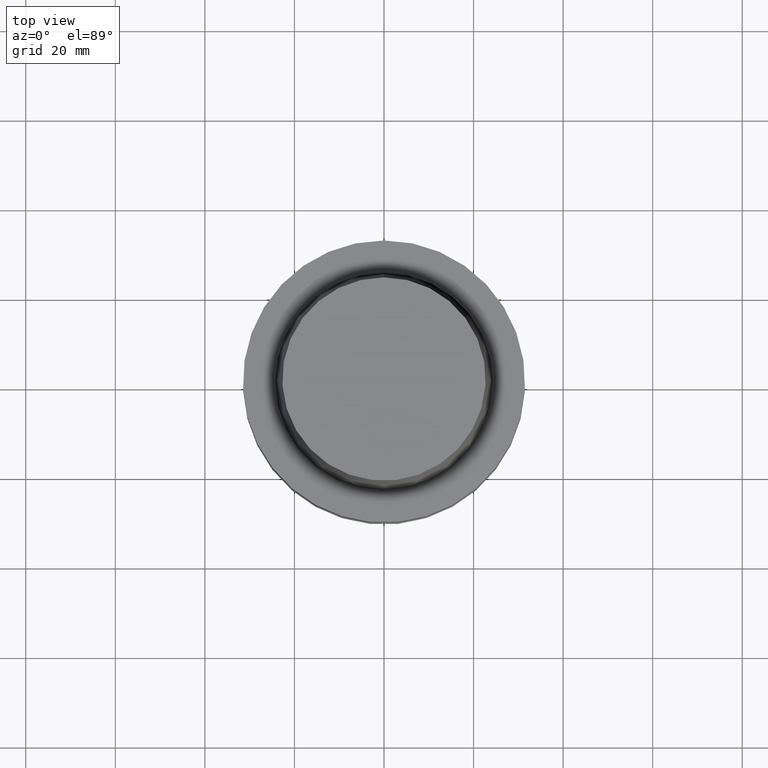
[diagram: clean part render]
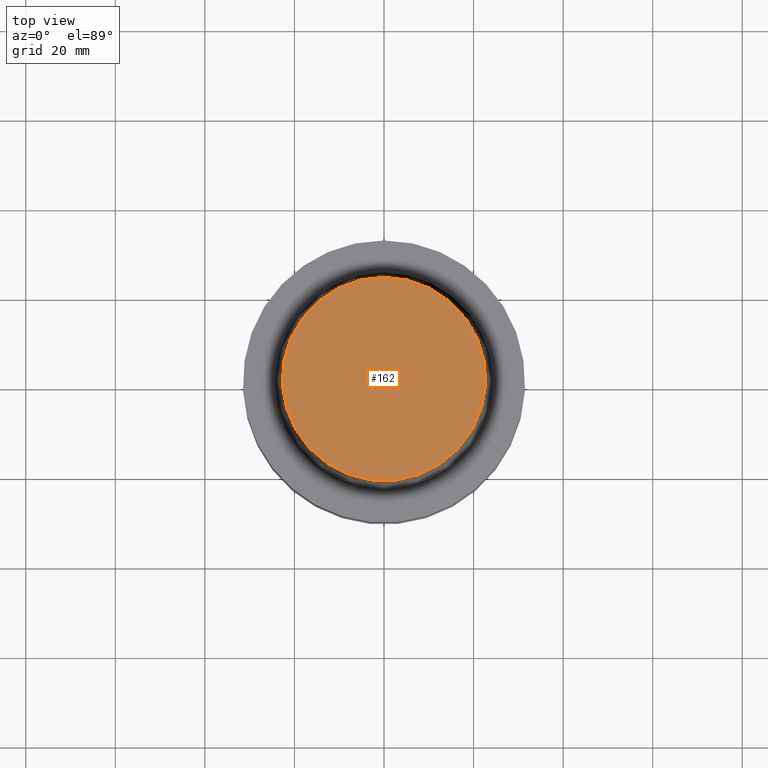
[diagram: same view with one face highlighted and labeled with its STEP entity id]
A machine part, top view. The second image highlights one B-rep face of the part: STEP entity #162.
In plain terms, the highlighted planar face has unit normal (-0, 0, 1).
Its self-contained STEP definition (entity closure, byte-faithful):
#100=EDGE_CURVE('Unnamed[1]',#243,#243,#244,.T.);
#162=ADVANCED_FACE('Unnamed[1]',(#341),#342,.T.);
#243=VERTEX_POINT('',#441);
#244=CIRCLE('',#442,22.715);
#341=FACE_OUTER_BOUND('',#563,.T.);
#342=PLANE('',#564);
#441=CARTESIAN_POINT('',(-1.95943487863576E-015,22.715,32.0));
#442=AXIS2_PLACEMENT_3D('',#657,#658,#659);
#563=EDGE_LOOP('',(#768));
#564=AXIS2_PLACEMENT_3D('',#769,#770,#771);
#657=CARTESIAN_POINT('',(-1.95943487863576E-015,-3.91886975727153E-015,32.0));
#658=DIRECTION('',(-6.12323399573676E-017,-1.22464679914735E-016,1.0));
#659=DIRECTION('',(-1.23259516440783E-032,1.0,1.22464679914735E-016));
#768=ORIENTED_EDGE('',*,*,#100,.T.);
#769=CARTESIAN_POINT('',(-1.95943487863576E-015,11.3575,32.0));
#770=DIRECTION('',(-6.12323399573677E-017,9.72362339746437E-016,1.0));
#771=DIRECTION('',(5.47128686183263E-032,1.0,-9.72362339746437E-016));